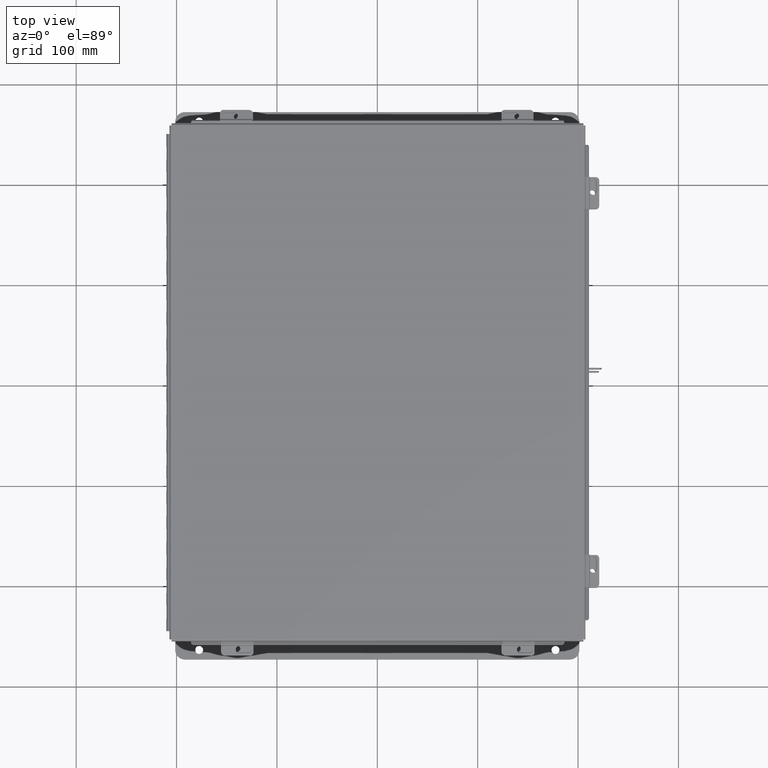
[diagram: clean part render]
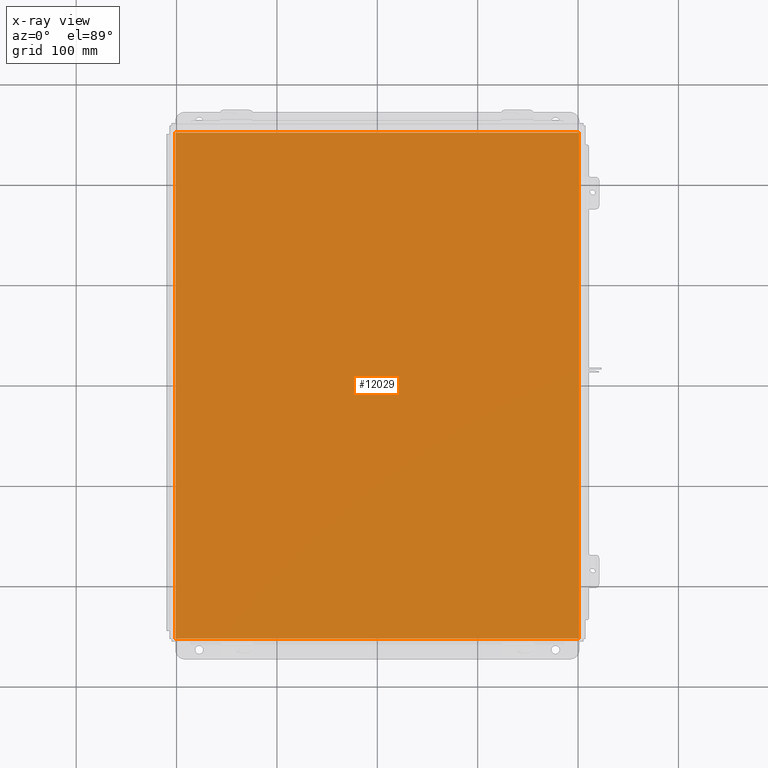
[diagram: x-ray — body ghosted, one internal face saturated and labeled with its STEP entity id]
A machine part, top view, then the same camera in x-ray: the body is ghosted and one INTERNAL B-rep face — a face not visible from any outside direction — is saturated and labeled: STEP entity #12029.
In plain terms, the highlighted planar face has unit normal (0, 0, -1).
Its self-contained STEP definition (entity closure, byte-faithful):
#44 = DIRECTION ( 'NONE',  ( -1.000000000000000000, 0.0000000000000000000, -0.0000000000000000000 ) ) ;
#165 = EDGE_CURVE ( 'NONE', #4111, #10188, #10595, .T. ) ;
#1250 = ORIENTED_EDGE ( 'NONE', *, *, #165, .F. ) ;
#1452 = VERTEX_POINT ( 'NONE', #7176 ) ;
#1565 = CARTESIAN_POINT ( 'NONE',  ( 7.912300000000002800, 9.925299999999992900, 4.268512490100411300E-017 ) ) ;
#1621 = EDGE_CURVE ( 'NONE', #4111, #1452, #2957, .T. ) ;
#1809 = CARTESIAN_POINT ( 'NONE',  ( -7.999999999999996400, -9.925299999999998200, 0.0000000000000000000 ) ) ;
#2073 = FACE_OUTER_BOUND ( 'NONE', #18538, .T. ) ;
#2662 = CARTESIAN_POINT ( 'NONE',  ( 7.912300000000002800, -9.925300000000000000, 4.268512490100411300E-017 ) ) ;
#2957 = LINE ( 'NONE', #9718, #11620 ) ;
#4111 = VERTEX_POINT ( 'NONE', #1565 ) ;
#5700 = ORIENTED_EDGE ( 'NONE', *, *, #18106, .F. ) ;
#5993 = VERTEX_POINT ( 'NONE', #12725 ) ;
#6565 = LINE ( 'NONE', #1809, #19818 ) ;
#7176 = CARTESIAN_POINT ( 'NONE',  ( -7.912299999999996600, 9.925299999999998200, 4.268512490100411300E-017 ) ) ;
#7518 = EDGE_CURVE ( 'NONE', #5993, #10188, #6565, .T. ) ;
#8707 = DIRECTION ( 'NONE',  ( 1.000000000000000000, -1.365923996832131600E-016, 0.0000000000000000000 ) ) ;
#8939 = AXIS2_PLACEMENT_3D ( 'NONE', #20777, #10418, #44 ) ;
#9254 = CARTESIAN_POINT ( 'NONE',  ( -7.912299999999996600, -9.925299999999998200, 4.268512490100411300E-017 ) ) ;
#9718 = CARTESIAN_POINT ( 'NONE',  ( -7.999999999999996400, 9.925299999999998200, 0.0000000000000000000 ) ) ;
#10188 = VERTEX_POINT ( 'NONE', #2662 ) ;
#10418 = DIRECTION ( 'NONE',  ( 0.0000000000000000000, 0.0000000000000000000, -1.000000000000000000 ) ) ;
#10595 = LINE ( 'NONE', #15264, #19258 ) ;
#11620 = VECTOR ( 'NONE', #12926, 39.37007874015748100 ) ;
#12029 = ADVANCED_FACE ( 'NONE', ( #2073 ), #17289, .F. ) ;
#12725 = CARTESIAN_POINT ( 'NONE',  ( -7.912299999999996600, -9.925299999999996500, 4.268512490100411300E-017 ) ) ;
#12926 = DIRECTION ( 'NONE',  ( -1.000000000000000000, -0.0000000000000000000, -0.0000000000000000000 ) ) ;
#13005 = VECTOR ( 'NONE', #19470, 39.37007874015748100 ) ;
#15264 = CARTESIAN_POINT ( 'NONE',  ( 7.912300000000002800, 9.925299999999996500, 4.268512490100411300E-017 ) ) ;
#17289 = PLANE ( 'NONE',  #8939 ) ;
#18106 = EDGE_CURVE ( 'NONE', #5993, #1452, #22233, .T. ) ;
#18538 = EDGE_LOOP ( 'NONE', ( #1250, #20886, #5700, #20758 ) ) ;
#19258 = VECTOR ( 'NONE', #21405, 39.37007874015748100 ) ;
#19470 = DIRECTION ( 'NONE',  ( -0.0000000000000000000, 1.000000000000000000, -0.0000000000000000000 ) ) ;
#19818 = VECTOR ( 'NONE', #8707, 39.37007874015748100 ) ;
#20758 = ORIENTED_EDGE ( 'NONE', *, *, #7518, .T. ) ;
#20777 = CARTESIAN_POINT ( 'NONE',  ( 0.0000000000000000000, 0.0000000000000000000, 0.0000000000000000000 ) ) ;
#20886 = ORIENTED_EDGE ( 'NONE', *, *, #1621, .T. ) ;
#21405 = DIRECTION ( 'NONE',  ( -0.0000000000000000000, -1.000000000000000000, -0.0000000000000000000 ) ) ;
#22233 = LINE ( 'NONE', #9254, #13005 ) ;